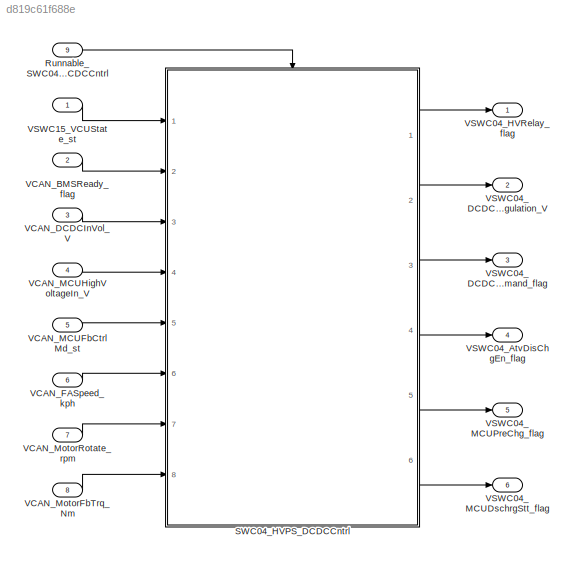
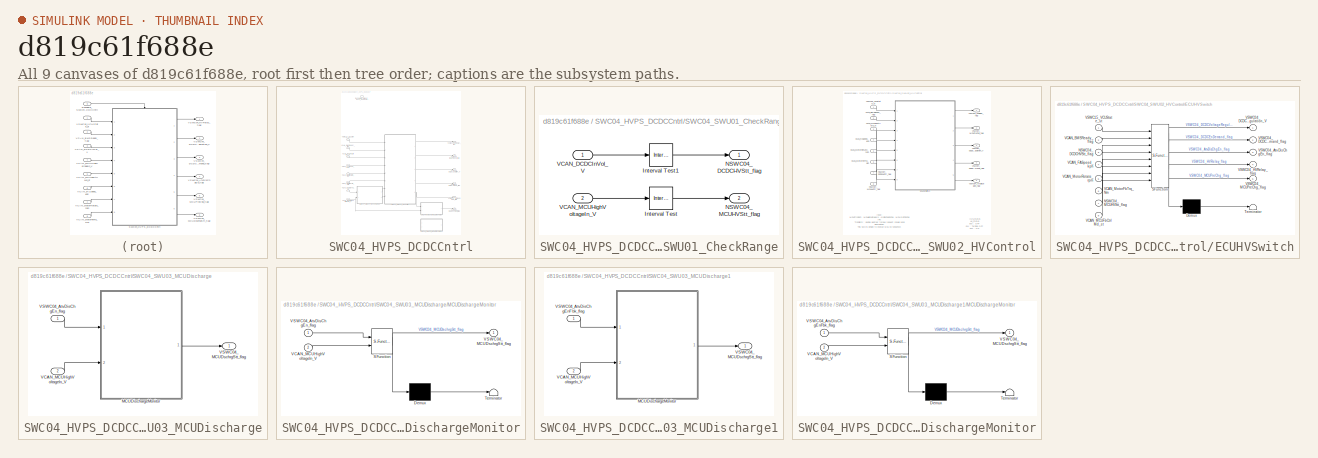
[diagram: thumbnail index - all 9 canvases of the model, root first then tree order]
MODEL slx_d819c61f688e
KIND model
CONFIG AbsTol = auto
CONFIG EnableMultiTasking = off
CONFIG FixedStep = 0.01
CONFIG MaxStep = auto
CONFIG MinStep = auto
CONFIG RelTol = 1e-3
CONFIG SampleTimeConstraint = Unconstrained
CONFIG SolverName = FixedStepDiscrete
CONFIG StartTime = 0.0
CONFIG StopTime = 10.0
WORKSPACE source: mxarray member
WORKSPACE KSWC07_PDOff_V: Simulink.Parameter (value not decoded)
WORKSPACE KSWC07_PDOn_V: Simulink.Parameter (value not decoded)
WORKSPACE NSWC04_B2VSOCEmgncyChgLow_per: Simulink.Parameter (value not decoded)
WORKSPACE NSWC04_KL30EmgncyChgLow_V: Simulink.Parameter (value not decoded)
BLOCK [Inport] Runnable_SWC04HVPSDCDCCntrl
  OutputFunctionCall = on
  Port = 9
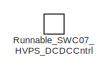
[diagram: SWC04_HVPS_DCDCCntrl - part 1/2, top left region]
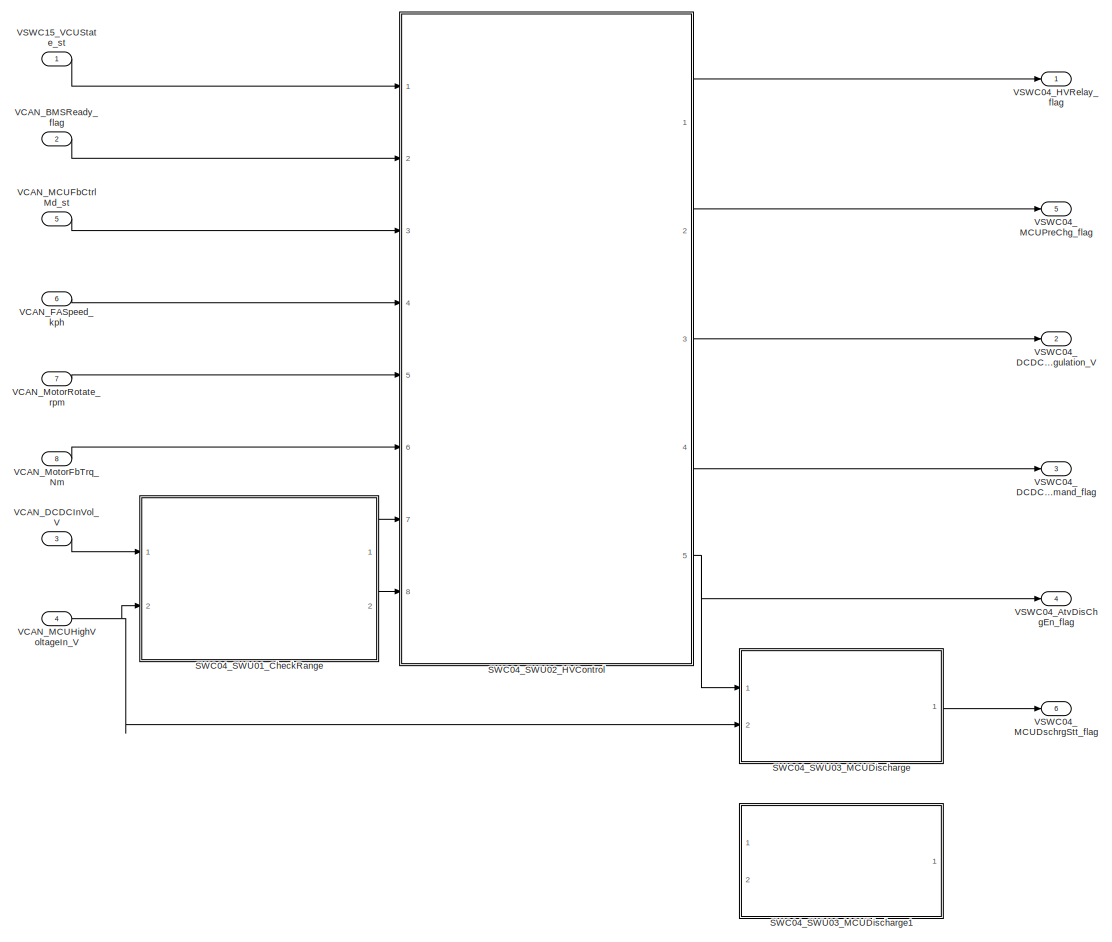
[diagram: SWC04_HVPS_DCDCCntrl - part 2/2, full width, middle band]
BLOCK [SubSystem] SWC04_HVPS_DCDCCntrl
  Ports = [8, 6, 0, 1]
  RequestExecContextInheritance = off
BLOCK [TriggerPort] SWC04_HVPS_DCDCCntrl/Runnable_SWC07_HVPS_DCDCCntrl
  Ports = []
  StatesWhenEnabling = held
  TriggerType = function-call
  VariantControl = Variant
BLOCK [SubSystem] SWC04_HVPS_DCDCCntrl/SWC04_SWU01_CheckRange
  Ports = [2, 2]
  RTWFcnName = SWC04_SWU01_CheckRange
  RTWFcnNameOpts = User specified
  RTWSystemCode = Nonreusable function
  RequestExecContextInheritance = off
  TreatAsAtomicUnit = on
BLOCK [Reference] SWC04_HVPS_DCDCCntrl/SWC04_SWU01_CheckRange/Interval Test  REF=simulink/Logic and Bit
Operations/Interval Test
  AttributesFormatString = %<uplimit>~%<lowlimit>
  Ports = [1, 1]
  SourceBlock = simulink/Logic and Bit\nOperations/Interval Test
  SourceProductBaseCode = SL
  SourceType = Interval Test
BLOCK [Reference] SWC04_HVPS_DCDCCntrl/SWC04_SWU01_CheckRange/Interval Test1  REF=simulink/Logic and Bit
Operations/Interval Test
  AttributesFormatString = %<uplimit>~%<lowlimit>
  Ports = [1, 1]
  SourceBlock = simulink/Logic and Bit\nOperations/Interval Test
  SourceProductBaseCode = SL
  SourceType = Interval Test
BLOCK [Outport] SWC04_HVPS_DCDCCntrl/SWC04_SWU01_CheckRange/NSWC04_DCDCHVStt_flag
BLOCK [Outport] SWC04_HVPS_DCDCCntrl/SWC04_SWU01_CheckRange/NSWC04_MCUHVStt_flag
  Port = 2
BLOCK [Inport] SWC04_HVPS_DCDCCntrl/SWC04_SWU01_CheckRange/VCAN_DCDCInVol_V
BLOCK [Inport] SWC04_HVPS_DCDCCntrl/SWC04_SWU01_CheckRange/VCAN_MCUHighVoltageIn_V
  Port = 2
BLOCK [SubSystem] SWC04_HVPS_DCDCCntrl/SWC04_SWU02_HVControl
  Ports = [8, 5]
  RTWFcnName = SWC04_SWU02_HVControl
  RTWFcnNameOpts = User specified
  RTWSystemCode = Nonreusable function
  RequestExecContextInheritance = off
  TreatAsAtomicUnit = on
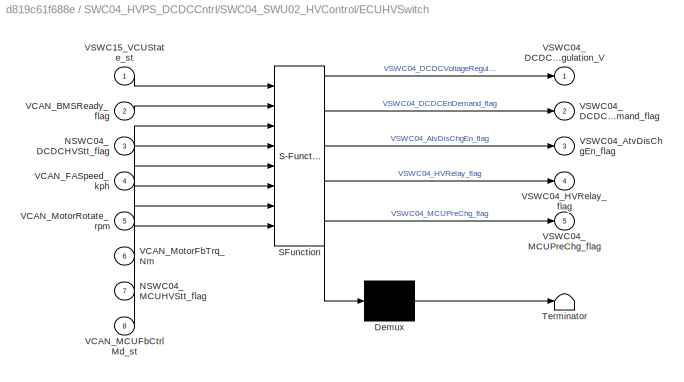
BLOCK [SubSystem] SWC04_HVPS_DCDCCntrl/SWC04_SWU02_HVControl/ECUHVSwitch
  ErrorFcn = Stateflow.Translate.translate
  PermitHierarchicalResolution = ExplicitOnly
  PortSchema = {"entries":[{"content":{"sides":[{"content":{"connectorIds":["In1","In2","In8","In4","In5","In6","In3","In7"]},"type":"ConnectorPlacement.EquallySpacedRectSide","uuid":"9266dbf1-70a9-4f04-bd33-da9c8fd394b7"},{"content":{"connectorIds":["Out4","Out5","Out1","Out2","Out3"],"side":"RIGHT"},"type":"ConnectorPlacement.EquallySpacedRectSide","uuid":"b1d84704-ffdf-48b3-a93e-c6e208d4a054"},{"content":{"co...<+310ch>
  Ports = [8, 5]
  RequestExecContextInheritance = off
  SFBlockType = Chart
  TreatAsAtomicUnit = on
BLOCK [Demux] SWC04_HVPS_DCDCCntrl/SWC04_SWU02_HVControl/ECUHVSwitch/ Demux 
  Outputs = 1
  Ports = [1, 1]
BLOCK [S-Function] SWC04_HVPS_DCDCCntrl/SWC04_SWU02_HVControl/ECUHVSwitch/ SFunction 
  EnableBusSupport = on
  FunctionName = sf_sfun
  Parameters = DCDC_14V,MCUMd_AD,MCUMd_SB,MFbTrq_Off,MRtt_Off,VSUStt_HVOff,VSUStt_HVOn,VhSpd_Off
  PortCounts = [8 6]
  Ports = [8, 6]
  SFcnIsStateOwnerBlock = off
  SFunctionDeploymentMode = off
  Tag = Stateflow S-Function 2
BLOCK [Terminator] SWC04_HVPS_DCDCCntrl/SWC04_SWU02_HVControl/ECUHVSwitch/ Terminator 
BLOCK [Inport] SWC04_HVPS_DCDCCntrl/SWC04_SWU02_HVControl/ECUHVSwitch/NSWC04_DCDCHVStt_flag
  Port = 3
BLOCK [Inport] SWC04_HVPS_DCDCCntrl/SWC04_SWU02_HVControl/ECUHVSwitch/NSWC04_MCUHVStt_flag
  Port = 7
BLOCK [Inport] SWC04_HVPS_DCDCCntrl/SWC04_SWU02_HVControl/ECUHVSwitch/VCAN_BMSReady_flag
  Port = 2
BLOCK [Inport] SWC04_HVPS_DCDCCntrl/SWC04_SWU02_HVControl/ECUHVSwitch/VCAN_FASpeed_kph
  Port = 4
BLOCK [Inport] SWC04_HVPS_DCDCCntrl/SWC04_SWU02_HVControl/ECUHVSwitch/VCAN_MCUFbCtrlMd_st
  Port = 8
BLOCK [Inport] SWC04_HVPS_DCDCCntrl/SWC04_SWU02_HVControl/ECUHVSwitch/VCAN_MotorFbTrq_Nm
  Port = 6
BLOCK [Inport] SWC04_HVPS_DCDCCntrl/SWC04_SWU02_HVControl/ECUHVSwitch/VCAN_MotorRotate_rpm
  Port = 5
BLOCK [Outport] SWC04_HVPS_DCDCCntrl/SWC04_SWU02_HVControl/ECUHVSwitch/VSWC04_AtvDisChgEn_flag
  Port = 3
BLOCK [Outport] SWC04_HVPS_DCDCCntrl/SWC04_SWU02_HVControl/ECUHVSwitch/VSWC04_DCDCEnDemand_flag
  Port = 2
BLOCK [Outport] SWC04_HVPS_DCDCCntrl/SWC04_SWU02_HVControl/ECUHVSwitch/VSWC04_DCDCVoltageRegulation_V
BLOCK [Outport] SWC04_HVPS_DCDCCntrl/SWC04_SWU02_HVControl/ECUHVSwitch/VSWC04_HVRelay_flag
  Port = 4
BLOCK [Outport] SWC04_HVPS_DCDCCntrl/SWC04_SWU02_HVControl/ECUHVSwitch/VSWC04_MCUPreChg_flag
  Port = 5
BLOCK [Inport] SWC04_HVPS_DCDCCntrl/SWC04_SWU02_HVControl/ECUHVSwitch/VSWC15_VCUState_st
BLOCK [Inport] SWC04_HVPS_DCDCCntrl/SWC04_SWU02_HVControl/NSWC07_DCDCHVStt_flag
  Port = 7
BLOCK [Inport] SWC04_HVPS_DCDCCntrl/SWC04_SWU02_HVControl/NSWC07_MCUHVStt_flag
  Port = 8
BLOCK [Inport] SWC04_HVPS_DCDCCntrl/SWC04_SWU02_HVControl/VCAN_BMSReady_flag
  Port = 2
BLOCK [Inport] SWC04_HVPS_DCDCCntrl/SWC04_SWU02_HVControl/VCAN_FASpeed_kph
  Port = 4
BLOCK [Inport] SWC04_HVPS_DCDCCntrl/SWC04_SWU02_HVControl/VCAN_MCUFbCtrlMd_st
  Port = 3
BLOCK [Inport] SWC04_HVPS_DCDCCntrl/SWC04_SWU02_HVControl/VCAN_MotorFbTrq_Nm
  Port = 6
BLOCK [Inport] SWC04_HVPS_DCDCCntrl/SWC04_SWU02_HVControl/VCAN_MotorRotate_rpm
  Port = 5
BLOCK [Outport] SWC04_HVPS_DCDCCntrl/SWC04_SWU02_HVControl/VSWC04_AtvDisChgEn_flag
  Port = 5
BLOCK [Outport] SWC04_HVPS_DCDCCntrl/SWC04_SWU02_HVControl/VSWC04_DCDCEnDemand_flag
  Port = 4
BLOCK [Outport] SWC04_HVPS_DCDCCntrl/SWC04_SWU02_HVControl/VSWC04_DCDCVoltageRegulation_V
  Port = 3
BLOCK [Outport] SWC04_HVPS_DCDCCntrl/SWC04_SWU02_HVControl/VSWC04_HVRelay_flag
BLOCK [Outport] SWC04_HVPS_DCDCCntrl/SWC04_SWU02_HVControl/VSWC04_MCUPreChg_flag
  Port = 2
BLOCK [Inport] SWC04_HVPS_DCDCCntrl/SWC04_SWU02_HVControl/VSWC15_VCUState_st
BLOCK [SubSystem] SWC04_HVPS_DCDCCntrl/SWC04_SWU03_MCUDischarge
  Ports = [2, 1]
  RTWFcnName = SWC04_SWU03_MCUDischarge
  RTWFcnNameOpts = User specified
  RTWSystemCode = Nonreusable function
  RequestExecContextInheritance = off
  TreatAsAtomicUnit = on
  VariantControl = Choice_1
BLOCK [SubSystem] SWC04_HVPS_DCDCCntrl/SWC04_SWU03_MCUDischarge/MCUDischargeMonitor
  ErrorFcn = Stateflow.Translate.translate
  PermitHierarchicalResolution = ExplicitOnly
  Ports = [2, 1]
  RequestExecContextInheritance = off
  SFBlockType = Chart
  TreatAsAtomicUnit = on
  VariantControl = Choice
BLOCK [Demux] SWC04_HVPS_DCDCCntrl/SWC04_SWU03_MCUDischarge/MCUDischargeMonitor/ Demux 
  Outputs = 1
  Ports = [1, 1]
BLOCK [S-Function] SWC04_HVPS_DCDCCntrl/SWC04_SWU03_MCUDischarge/MCUDischargeMonitor/ SFunction 
  EnableBusSupport = on
  FunctionName = sf_sfun
  Parameters = HV50V
  PortCounts = [2 2]
  Ports = [2, 2]
  SFcnIsStateOwnerBlock = off
  SFunctionDeploymentMode = off
  Tag = Stateflow S-Function 1
BLOCK [Terminator] SWC04_HVPS_DCDCCntrl/SWC04_SWU03_MCUDischarge/MCUDischargeMonitor/ Terminator 
BLOCK [Inport] SWC04_HVPS_DCDCCntrl/SWC04_SWU03_MCUDischarge/MCUDischargeMonitor/VCAN_MCUHighVoltageIn_V
  Port = 2
BLOCK [Inport] SWC04_HVPS_DCDCCntrl/SWC04_SWU03_MCUDischarge/MCUDischargeMonitor/VSWC04_AtvDisChgEn_flag
BLOCK [Outport] SWC04_HVPS_DCDCCntrl/SWC04_SWU03_MCUDischarge/MCUDischargeMonitor/VSWC04_MCUDschrgStt_flag
BLOCK [Inport] SWC04_HVPS_DCDCCntrl/SWC04_SWU03_MCUDischarge/VCAN_MCUHighVoltageIn_V
  Port = 2
BLOCK [Inport] SWC04_HVPS_DCDCCntrl/SWC04_SWU03_MCUDischarge/VSWC04_AtvDisChgEn_flag
BLOCK [Outport] SWC04_HVPS_DCDCCntrl/SWC04_SWU03_MCUDischarge/VSWC04_MCUDschrgStt_flag
BLOCK [SubSystem] SWC04_HVPS_DCDCCntrl/SWC04_SWU03_MCUDischarge1
  Commented = on
  Ports = [2, 1]
  RequestExecContextInheritance = off
  VariantControl = Choice_2
BLOCK [SubSystem] SWC04_HVPS_DCDCCntrl/SWC04_SWU03_MCUDischarge1/MCUDischargeMonitor
  ErrorFcn = Stateflow.Translate.translate
  PermitHierarchicalResolution = ExplicitOnly
  Ports = [2, 1]
  RequestExecContextInheritance = off
  SFBlockType = Chart
  TreatAsAtomicUnit = on
  VariantControl = Choice
BLOCK [Demux] SWC04_HVPS_DCDCCntrl/SWC04_SWU03_MCUDischarge1/MCUDischargeMonitor/ Demux 
  Outputs = 1
  Ports = [1, 1]
BLOCK [S-Function] SWC04_HVPS_DCDCCntrl/SWC04_SWU03_MCUDischarge1/MCUDischargeMonitor/ SFunction 
  EnableBusSupport = on
  FunctionName = sf_sfun
  Parameters = HV50V
  PortCounts = [2 2]
  Ports = [2, 2]
  SFcnIsStateOwnerBlock = off
  SFunctionDeploymentMode = off
  Tag = Stateflow S-Function 5
BLOCK [Terminator] SWC04_HVPS_DCDCCntrl/SWC04_SWU03_MCUDischarge1/MCUDischargeMonitor/ Terminator 
BLOCK [Inport] SWC04_HVPS_DCDCCntrl/SWC04_SWU03_MCUDischarge1/MCUDischargeMonitor/VCAN_MCUHighVoltageIn_V
  Port = 2
BLOCK [Inport] SWC04_HVPS_DCDCCntrl/SWC04_SWU03_MCUDischarge1/MCUDischargeMonitor/VSWC04_AtvDisChgEnFbk_flag
BLOCK [Outport] SWC04_HVPS_DCDCCntrl/SWC04_SWU03_MCUDischarge1/MCUDischargeMonitor/VSWC04_MCUDschrgStt_flag
BLOCK [Inport] SWC04_HVPS_DCDCCntrl/SWC04_SWU03_MCUDischarge1/VCAN_MCUHighVoltageIn_V
  Port = 2
BLOCK [Inport] SWC04_HVPS_DCDCCntrl/SWC04_SWU03_MCUDischarge1/VSWC04_AtvDisChgEnFbk_flag
BLOCK [Outport] SWC04_HVPS_DCDCCntrl/SWC04_SWU03_MCUDischarge1/VSWC04_MCUDschrgStt_flag
BLOCK [Inport] SWC04_HVPS_DCDCCntrl/VCAN_BMSReady_flag
  Port = 2
BLOCK [Inport] SWC04_HVPS_DCDCCntrl/VCAN_DCDCInVol_V
  Port = 3
BLOCK [Inport] SWC04_HVPS_DCDCCntrl/VCAN_FASpeed_kph
  Port = 6
BLOCK [Inport] SWC04_HVPS_DCDCCntrl/VCAN_MCUFbCtrlMd_st
  Port = 5
BLOCK [Inport] SWC04_HVPS_DCDCCntrl/VCAN_MCUHighVoltageIn_V
  Port = 4
BLOCK [Inport] SWC04_HVPS_DCDCCntrl/VCAN_MotorFbTrq_Nm
  Port = 8
BLOCK [Inport] SWC04_HVPS_DCDCCntrl/VCAN_MotorRotate_rpm
  Port = 7
BLOCK [Outport] SWC04_HVPS_DCDCCntrl/VSWC04_AtvDisChgEn_flag
  Port = 4
BLOCK [Outport] SWC04_HVPS_DCDCCntrl/VSWC04_DCDCEnDemand_flag
  Port = 3
BLOCK [Outport] SWC04_HVPS_DCDCCntrl/VSWC04_DCDCVoltageRegulation_V
  Port = 2
BLOCK [Outport] SWC04_HVPS_DCDCCntrl/VSWC04_HVRelay_flag
BLOCK [Outport] SWC04_HVPS_DCDCCntrl/VSWC04_MCUDschrgStt_flag
  Port = 6
BLOCK [Outport] SWC04_HVPS_DCDCCntrl/VSWC04_MCUPreChg_flag
  Port = 5
BLOCK [Inport] SWC04_HVPS_DCDCCntrl/VSWC15_VCUState_st
BLOCK [Inport] VCAN_BMSReady_flag
  OutDataTypeStr = boolean
  OutMax = 1
  OutMin = 0
  Port = 2
  PortDimensions = 1
BLOCK [Inport] VCAN_DCDCInVol_V
  OutDataTypeStr = uint16
  OutMax = 500
  OutMin = 0
  Port = 3
  PortDimensions = 1
  Unit = V
BLOCK [Inport] VCAN_FASpeed_kph
  OutDataTypeStr = uint8
  OutMax = 150
  OutMin = 0
  Port = 6
  PortDimensions = 1
  Unit = km/hr
BLOCK [Inport] VCAN_MCUFbCtrlMd_st
  OutDataTypeStr = uint8
  OutMax = 4
  OutMin = 0
  Port = 5
  PortDimensions = 1
BLOCK [Inport] VCAN_MCUHighVoltageIn_V
  OutDataTypeStr = uint16
  OutMax = 500
  OutMin = 0
  Port = 4
  PortDimensions = 1
  Unit = V
BLOCK [Inport] VCAN_MotorFbTrq_Nm
  OutDataTypeStr = uint8
  OutMax = 225
  OutMin = 0
  Port = 8
  PortDimensions = 1
  Unit = N*m
BLOCK [Inport] VCAN_MotorRotate_rpm
  OutDataTypeStr = uint16
  OutMax = 16000
  OutMin = 0
  Port = 7
  PortDimensions = 1
  Unit = rpm
BLOCK [Outport] VSWC04_AtvDisChgEn_flag
  OutDataTypeStr = boolean
  OutMax = 1
  OutMin = 0
  Port = 4
  PortDimensions = 1
BLOCK [Outport] VSWC04_DCDCEnDemand_flag
  OutDataTypeStr = boolean
  OutMax = 1
  OutMin = 0
  Port = 3
  PortDimensions = 1
BLOCK [Outport] VSWC04_DCDCVoltageRegulation_V
  OutDataTypeStr = uint8
  OutMax = 36
  OutMin = 0
  Port = 2
  PortDimensions = 1
  Unit = V
BLOCK [Outport] VSWC04_HVRelay_flag
  OutDataTypeStr = boolean
  OutMax = 1
  OutMin = 0
  PortDimensions = 1
BLOCK [Outport] VSWC04_MCUDschrgStt_flag
  OutDataTypeStr = boolean
  OutMax = 1
  OutMin = 0
  Port = 6
  PortDimensions = 1
BLOCK [Outport] VSWC04_MCUPreChg_flag
  OutDataTypeStr = boolean
  OutMax = 1
  OutMin = 0
  Port = 5
  PortDimensions = 1
BLOCK [Inport] VSWC15_VCUState_st
  OutDataTypeStr = uint8
  OutMax = 13
  OutMin = 0
  PortDimensions = 1
ANNOTATION SWC04_HVPS_DCDCCntrl/SWC04_SWU02_HVControl: Input: MCUSttsRqst, MCUHighVoltageIn , AtvDisChgEnFbk, MCUIGBTEnFbk IRV: TrqSwitch : decide whether torque request should send Description: This SWC is design to execue MCU HV sequence. Output: MCU_status, VCUMCUEn, VCUMCUCtrlMd, VCUMCUDemTrq
ANNOTATION SWC04_HVPS_DCDCCntrl/SWC04_SWU02_HVControl: IGN_status HV_status 0x0 : OFF 0x1 : Turning OFF 0x2 : ON
LINE Runnable_SWC04HVPSDCDCCntrl:1 -> SWC04_HVPS_DCDCCntrl:trigger
LINE SWC04_HVPS_DCDCCntrl/SWC04_SWU01_CheckRange/Interval Test1:1 -> SWC04_HVPS_DCDCCntrl/SWC04_SWU01_CheckRange/NSWC04_DCDCHVStt_flag:1
LINE SWC04_HVPS_DCDCCntrl/SWC04_SWU01_CheckRange/Interval Test:1 -> SWC04_HVPS_DCDCCntrl/SWC04_SWU01_CheckRange/NSWC04_MCUHVStt_flag:1
LINE SWC04_HVPS_DCDCCntrl/SWC04_SWU01_CheckRange/VCAN_DCDCInVol_V:1 -> SWC04_HVPS_DCDCCntrl/SWC04_SWU01_CheckRange/Interval Test1:1
LINE SWC04_HVPS_DCDCCntrl/SWC04_SWU01_CheckRange/VCAN_MCUHighVoltageIn_V:1 -> SWC04_HVPS_DCDCCntrl/SWC04_SWU01_CheckRange/Interval Test:1
LINE SWC04_HVPS_DCDCCntrl/SWC04_SWU01_CheckRange:1 -> SWC04_HVPS_DCDCCntrl/SWC04_SWU02_HVControl:7
LINE SWC04_HVPS_DCDCCntrl/SWC04_SWU01_CheckRange:2 -> SWC04_HVPS_DCDCCntrl/SWC04_SWU02_HVControl:8
LINE SWC04_HVPS_DCDCCntrl/SWC04_SWU02_HVControl/ECUHVSwitch:1 -> SWC04_HVPS_DCDCCntrl/SWC04_SWU02_HVControl/VSWC04_DCDCVoltageRegulation_V:1
LINE SWC04_HVPS_DCDCCntrl/SWC04_SWU02_HVControl/ECUHVSwitch:2 -> SWC04_HVPS_DCDCCntrl/SWC04_SWU02_HVControl/VSWC04_DCDCEnDemand_flag:1
LINE SWC04_HVPS_DCDCCntrl/SWC04_SWU02_HVControl/ECUHVSwitch:3 -> SWC04_HVPS_DCDCCntrl/SWC04_SWU02_HVControl/VSWC04_AtvDisChgEn_flag:1
LINE SWC04_HVPS_DCDCCntrl/SWC04_SWU02_HVControl/ECUHVSwitch:4 -> SWC04_HVPS_DCDCCntrl/SWC04_SWU02_HVControl/VSWC04_HVRelay_flag:1
LINE SWC04_HVPS_DCDCCntrl/SWC04_SWU02_HVControl/ECUHVSwitch:5 -> SWC04_HVPS_DCDCCntrl/SWC04_SWU02_HVControl/VSWC04_MCUPreChg_flag:1
LINE SWC04_HVPS_DCDCCntrl/SWC04_SWU02_HVControl/NSWC07_DCDCHVStt_flag:1 -> SWC04_HVPS_DCDCCntrl/SWC04_SWU02_HVControl/ECUHVSwitch:3
LINE SWC04_HVPS_DCDCCntrl/SWC04_SWU02_HVControl/NSWC07_MCUHVStt_flag:1 -> SWC04_HVPS_DCDCCntrl/SWC04_SWU02_HVControl/ECUHVSwitch:7
LINE SWC04_HVPS_DCDCCntrl/SWC04_SWU02_HVControl/VCAN_BMSReady_flag:1 -> SWC04_HVPS_DCDCCntrl/SWC04_SWU02_HVControl/ECUHVSwitch:2
LINE SWC04_HVPS_DCDCCntrl/SWC04_SWU02_HVControl/VCAN_FASpeed_kph:1 -> SWC04_HVPS_DCDCCntrl/SWC04_SWU02_HVControl/ECUHVSwitch:4
LINE SWC04_HVPS_DCDCCntrl/SWC04_SWU02_HVControl/VCAN_MCUFbCtrlMd_st:1 -> SWC04_HVPS_DCDCCntrl/SWC04_SWU02_HVControl/ECUHVSwitch:8
LINE SWC04_HVPS_DCDCCntrl/SWC04_SWU02_HVControl/VCAN_MotorFbTrq_Nm:1 -> SWC04_HVPS_DCDCCntrl/SWC04_SWU02_HVControl/ECUHVSwitch:6
LINE SWC04_HVPS_DCDCCntrl/SWC04_SWU02_HVControl/VCAN_MotorRotate_rpm:1 -> SWC04_HVPS_DCDCCntrl/SWC04_SWU02_HVControl/ECUHVSwitch:5
LINE SWC04_HVPS_DCDCCntrl/SWC04_SWU02_HVControl/VSWC15_VCUState_st:1 -> SWC04_HVPS_DCDCCntrl/SWC04_SWU02_HVControl/ECUHVSwitch:1
LINE SWC04_HVPS_DCDCCntrl/SWC04_SWU02_HVControl:1 -> SWC04_HVPS_DCDCCntrl/VSWC04_HVRelay_flag:1
LINE SWC04_HVPS_DCDCCntrl/SWC04_SWU02_HVControl:2 -> SWC04_HVPS_DCDCCntrl/VSWC04_MCUPreChg_flag:1
LINE SWC04_HVPS_DCDCCntrl/SWC04_SWU02_HVControl:3 -> SWC04_HVPS_DCDCCntrl/VSWC04_DCDCVoltageRegulation_V:1
LINE SWC04_HVPS_DCDCCntrl/SWC04_SWU02_HVControl:4 -> SWC04_HVPS_DCDCCntrl/VSWC04_DCDCEnDemand_flag:1
NET SWC04_HVPS_DCDCCntrl/SWC04_SWU02_HVControl:5 -> SWC04_HVPS_DCDCCntrl/SWC04_SWU03_MCUDischarge:1, SWC04_HVPS_DCDCCntrl/VSWC04_AtvDisChgEn_flag:1
LINE SWC04_HVPS_DCDCCntrl/SWC04_SWU03_MCUDischarge/MCUDischargeMonitor:1 -> SWC04_HVPS_DCDCCntrl/SWC04_SWU03_MCUDischarge/VSWC04_MCUDschrgStt_flag:1
LINE SWC04_HVPS_DCDCCntrl/SWC04_SWU03_MCUDischarge/VCAN_MCUHighVoltageIn_V:1 -> SWC04_HVPS_DCDCCntrl/SWC04_SWU03_MCUDischarge/MCUDischargeMonitor:2
LINE SWC04_HVPS_DCDCCntrl/SWC04_SWU03_MCUDischarge/VSWC04_AtvDisChgEn_flag:1 -> SWC04_HVPS_DCDCCntrl/SWC04_SWU03_MCUDischarge/MCUDischargeMonitor:1
LINE SWC04_HVPS_DCDCCntrl/SWC04_SWU03_MCUDischarge1/MCUDischargeMonitor:1 -> SWC04_HVPS_DCDCCntrl/SWC04_SWU03_MCUDischarge1/VSWC04_MCUDschrgStt_flag:1
LINE SWC04_HVPS_DCDCCntrl/SWC04_SWU03_MCUDischarge1/VCAN_MCUHighVoltageIn_V:1 -> SWC04_HVPS_DCDCCntrl/SWC04_SWU03_MCUDischarge1/MCUDischargeMonitor:2
LINE SWC04_HVPS_DCDCCntrl/SWC04_SWU03_MCUDischarge1/VSWC04_AtvDisChgEnFbk_flag:1 -> SWC04_HVPS_DCDCCntrl/SWC04_SWU03_MCUDischarge1/MCUDischargeMonitor:1
LINE SWC04_HVPS_DCDCCntrl/SWC04_SWU03_MCUDischarge:1 -> SWC04_HVPS_DCDCCntrl/VSWC04_MCUDschrgStt_flag:1
LINE SWC04_HVPS_DCDCCntrl/VCAN_BMSReady_flag:1 -> SWC04_HVPS_DCDCCntrl/SWC04_SWU02_HVControl:2
LINE SWC04_HVPS_DCDCCntrl/VCAN_DCDCInVol_V:1 -> SWC04_HVPS_DCDCCntrl/SWC04_SWU01_CheckRange:1
LINE SWC04_HVPS_DCDCCntrl/VCAN_FASpeed_kph:1 -> SWC04_HVPS_DCDCCntrl/SWC04_SWU02_HVControl:4
LINE SWC04_HVPS_DCDCCntrl/VCAN_MCUFbCtrlMd_st:1 -> SWC04_HVPS_DCDCCntrl/SWC04_SWU02_HVControl:3
NET SWC04_HVPS_DCDCCntrl/VCAN_MCUHighVoltageIn_V:1 -> SWC04_HVPS_DCDCCntrl/SWC04_SWU01_CheckRange:2, SWC04_HVPS_DCDCCntrl/SWC04_SWU03_MCUDischarge:2
LINE SWC04_HVPS_DCDCCntrl/VCAN_MotorFbTrq_Nm:1 -> SWC04_HVPS_DCDCCntrl/SWC04_SWU02_HVControl:6
LINE SWC04_HVPS_DCDCCntrl/VCAN_MotorRotate_rpm:1 -> SWC04_HVPS_DCDCCntrl/SWC04_SWU02_HVControl:5
LINE SWC04_HVPS_DCDCCntrl/VSWC15_VCUState_st:1 -> SWC04_HVPS_DCDCCntrl/SWC04_SWU02_HVControl:1
LINE SWC04_HVPS_DCDCCntrl:1 -> VSWC04_HVRelay_flag:1
LINE SWC04_HVPS_DCDCCntrl:2 -> VSWC04_DCDCVoltageRegulation_V:1
LINE SWC04_HVPS_DCDCCntrl:3 -> VSWC04_DCDCEnDemand_flag:1
LINE SWC04_HVPS_DCDCCntrl:4 -> VSWC04_AtvDisChgEn_flag:1
LINE SWC04_HVPS_DCDCCntrl:5 -> VSWC04_MCUPreChg_flag:1
LINE SWC04_HVPS_DCDCCntrl:6 -> VSWC04_MCUDschrgStt_flag:1
LINE VCAN_BMSReady_flag:1 -> SWC04_HVPS_DCDCCntrl:2
LINE VCAN_DCDCInVol_V:1 -> SWC04_HVPS_DCDCCntrl:3
LINE VCAN_FASpeed_kph:1 -> SWC04_HVPS_DCDCCntrl:6
LINE VCAN_MCUFbCtrlMd_st:1 -> SWC04_HVPS_DCDCCntrl:5
LINE VCAN_MCUHighVoltageIn_V:1 -> SWC04_HVPS_DCDCCntrl:4
LINE VCAN_MotorFbTrq_Nm:1 -> SWC04_HVPS_DCDCCntrl:8
LINE VCAN_MotorRotate_rpm:1 -> SWC04_HVPS_DCDCCntrl:7
LINE VSWC15_VCUState_st:1 -> SWC04_HVPS_DCDCCntrl:1
note: NET lines group one-source signal fan-out (src -> all destinations, sorted); 1:1 wires keep LINE
CHART Test Assessment Block states=3 transitions=10
  STATE_LABEL 'Run\n\n'
  STATE_LABEL 'step_1_1'
  STATE_LABEL 'step_1_2'
  STATE_LABEL '[t < 5]'
  STATE_LABEL '[~in(step_1_1)]'
  STATE_LABEL '[~in(step_1_2)]'
  STATE_LABEL 'step_1_1'
  STATE_LABEL 'step_1_2'
CHART Test Sequence1 states=16 transitions=16
  STATE_LABEL 'step_1\n VCUStt = uint8(0); % Init\n BMSReady = false;'
  STATE_LABEL 'step_2\n VCUStt = uint8(1); % Waking'
  STATE_LABEL 'step_2_1'
  STATE_LABEL 'step_2_2'
  STATE_LABEL 'step_2_3\n BMSReady = true;'
  STATE_LABEL '[\nVCUStt == uint8(1)\n]'
  STATE_LABEL '[\nafter(10,tick)\n]'
  STATE_LABEL 'step_2_1'
  STATE_LABEL 'step_2_2'
  STATE_LABEL 'step_2_3\n BMSReady = true;'
  STATE_LABEL 'step_3\n  VCUStt = uint8(3); % HV ON\n  % HV ON start'
  STATE_LABEL 'step_3_1\n Flag = false;'
  STATE_LABEL 'step_3_2'
  STATE_LABEL 'step_3_3\n  DCDCHV = uint16(330);\n  MCUHV = uint16(330);'
  STATE_LABEL 'step_3_4'
  STATE_LABEL 'step_3_5\n %after(10,tick);\n MCUFbCtrlMd = uint8(4); % MCU Standby\n Flag = true;'
  STATE_LABEL '[\nRelay\n]'
  STATE_LABEL '[\nafter(10,tick)\n]'
  STATE_LABEL '[\nMCUPreChg\n]'
  STATE_LABEL 'step_3_1\n Flag = false;'
  STATE_LABEL 'step_3_2'
  STATE_LABEL 'step_3_3\n  DCDCHV = uint16(330);\n  MCUHV = uint16(330);'
  STATE_LABEL 'step_3_4'
  STATE_LABEL 'step_3_5\n %after(10,tick);\n MCUFbCtrlMd = uint8(4); % MCU Standby\n Flag = true;'
  STATE_LABEL 'step_4\n  VCUStt = uint8(6); % Driving Standby\n  % HV ON finish'
  STATE_LABEL 'step_5\n VCUStt = uint8(10); % HV OFF'
  STATE_LABEL 'step_5_1\n MCUFbCtrlMd = uint8(4); % MCU Standby'
  STATE_LABEL 'step_5_2\n MCUFbCtrlMd = uint8(3); % MCU Active Discharge'
  STATE_LABEL '[\nafter(20,tick) && MCUFbCtrlMd == uint8(4)\n]'
  STATE_LABEL 'step_5_1\n MCUFbCtrlMd = uint8(4); % MCU Standby'
  STATE_LABEL 'step_5_2\n MCUFbCtrlMd = uint8(3); % MCU Active Discharge'
  STATE_LABEL 'step_6\n VCUStt = uint8(13); % Wait OFF'
CHART Simulink Function scheduler states=3 transitions=3
  STATE_LABEL 'Run\n\n%% Call Initialization task.\nif t == 0\n    send(Initialize);\nend\n'
  STATE_LABEL 'AsyncFunctionCalls\n\n%% Call Asynchronous FunctionCall Subsystems.\n\n%%\nsend(Runnable_SWC04HVPSDCDCCntrl);'
  STATE_LABEL 'Terminate\n\n% Call Terminate task.\n% Add transitions to this step as required.\nsend(Terminate);'
CHART Test Assessment Block states=3 transitions=10
  STATE_LABEL 'Run\n\n'
  STATE_LABEL 'step_1_1'
  STATE_LABEL 'step_1_2'
  STATE_LABEL '[t < 5]'
  STATE_LABEL '[~in(step_1_1)]'
  STATE_LABEL '[~in(step_1_2)]'
  STATE_LABEL 'step_1_1'
  STATE_LABEL 'step_1_2'
CHART Simulink Function scheduler states=3 transitions=3
  STATE_LABEL 'Run\n\n%% Call Initialization task.\nif t == 0\n    send(Initialize);\nend\n'
  STATE_LABEL 'AsyncFunctionCalls\n\n%% Call Asynchronous FunctionCall Subsystems.\n\n%%\nsend(Runnable_SWC04HVPSDCDCCntrl);'
  STATE_LABEL 'Terminate\n\n% Call Terminate task.\n% Add transitions to this step as required.\nsend(Terminate);'
CHART Test Assessment Block states=3 transitions=10
  STATE_LABEL 'Run\n\n'
  STATE_LABEL 'step_1_1'
  STATE_LABEL 'step_1_2'
  STATE_LABEL '[t < 5]'
  STATE_LABEL '[~in(step_1_1)]'
  STATE_LABEL '[~in(step_1_2)]'
  STATE_LABEL 'step_1_1'
  STATE_LABEL 'step_1_2'
CHART Simulink Function scheduler states=3 transitions=3
  STATE_LABEL 'Run\n\n%% Call Initialization task.\nif t == 0\n    send(Initialize);\nend\n'
  STATE_LABEL 'AsyncFunctionCalls\n\n%% Call Asynchronous FunctionCall Subsystems.\n\n%%\nsend(Runnable_SWC04HVPSDCDCCntrl);'
  STATE_LABEL 'Terminate\n\n% Call Terminate task.\n% Add transitions to this step as required.\nsend(Terminate);'
CHART Test Assessment Block states=3 transitions=10
  STATE_LABEL 'Run\n\n'
  STATE_LABEL 'step_1_1'
  STATE_LABEL 'step_1_2'
  STATE_LABEL '[t < 5]'
  STATE_LABEL '[~in(step_1_1)]'
  STATE_LABEL '[~in(step_1_2)]'
  STATE_LABEL 'step_1_1'
  STATE_LABEL 'step_1_2'
CHART Test Assessment Block states=3 transitions=10
  STATE_LABEL 'Run\n\n'
  STATE_LABEL 'step_1_1'
  STATE_LABEL 'step_1_2'
  STATE_LABEL '[t < 5]'
  STATE_LABEL '[~in(step_1_1)]'
  STATE_LABEL '[~in(step_1_2)]'
  STATE_LABEL 'step_1_1'
  STATE_LABEL 'step_1_2'
CHART Test Assessment Block states=3 transitions=10
  STATE_LABEL 'Run\n\n'
  STATE_LABEL 'step_1_1'
  STATE_LABEL 'step_1_2'
  STATE_LABEL '[t < 5]'
  STATE_LABEL '[~in(step_1_1)]'
  STATE_LABEL '[~in(step_1_2)]'
  STATE_LABEL 'step_1_1'
  STATE_LABEL 'step_1_2'
CHART Test Sequence1 states=19 transitions=19
  STATE_LABEL 'step_1\n VCUStt = uint8(0); % Init\n BMSReady = false;'
  STATE_LABEL 'step_2\n VCUStt = uint8(1); % Waking'
  STATE_LABEL 'step_2_1'
  STATE_LABEL 'step_2_2'
  STATE_LABEL 'step_2_3\n BMSReady = true;'
  STATE_LABEL '[\nVCUStt == uint8(1)\n]'
  STATE_LABEL '[\nafter(10,tick)\n]'
  STATE_LABEL 'step_2_1'
  STATE_LABEL 'step_2_2'
  STATE_LABEL 'step_2_3\n BMSReady = true;'
  STATE_LABEL 'step_3\n  VCUStt = uint8(3); % HV ON\n  % HV ON start'
  STATE_LABEL 'step_3_1\n Flag = false;'
  STATE_LABEL 'step_3_2'
  STATE_LABEL 'step_3_3\n  DCDCHVStt = true;\n  MCUHVStt = true;'
  STATE_LABEL 'step_3_4'
  STATE_LABEL 'step_3_5\n %after(10,tick);\n MCUFbCtrlMd = uint8(4); % MCU Standby\n Flag = true;'
  STATE_LABEL '[\nRelay\n]'
  STATE_LABEL '[\nafter(10,tick)\n]'
  STATE_LABEL '[\nMCUHVStt\n]'
  STATE_LABEL 'step_3_1\n Flag = false;'
  STATE_LABEL 'step_3_2'
  STATE_LABEL 'step_3_3\n  DCDCHVStt = true;\n  MCUHVStt = true;'
  STATE_LABEL 'step_3_4'
  STATE_LABEL 'step_3_5\n %after(10,tick);\n MCUFbCtrlMd = uint8(4); % MCU Standby\n Flag = true;'
  STATE_LABEL 'step_4\n  VCUStt = uint8(6); % Driving Standby\n  % HV ON finish'
  STATE_LABEL 'step_5\n VCUStt = uint8(10); % HV OFF'
  STATE_LABEL 'step_5_1\n MCUFbCtrlMd = uint8(4); % MCU Standby'
  STATE_LABEL 'step_5_2\n MCUFbCtrlMd = uint8(3); % MCU Active Discharge'
  STATE_LABEL 'step_5_3'
  STATE_LABEL 'step_5_4'
  STATE_LABEL 'step_5_5\n MCUDischgStt = true;'
  STATE_LABEL '[\nafter(20,tick) && MCUFbCtrlMd == uint8(4)\n]'
  STATE_LABEL '[\nMCUDischg\n]'
  STATE_LABEL '[\nafter(10,tick)\n]'
  STATE_LABEL 'step_5_1\n MCUFbCtrlMd = uint8(4); % MCU Standby'
  STATE_LABEL 'step_5_2\n MCUFbCtrlMd = uint8(3); % MCU Active Discharge'
  STATE_LABEL 'step_5_3'
  STATE_LABEL 'step_5_4'
  STATE_LABEL 'step_5_5\n MCUDischgStt = true;'
  STATE_LABEL 'step_6\n VCUStt = uint8(13); % Wait OFF'
CHART Test Assessment Block states=3 transitions=10
  STATE_LABEL 'Run\n\n'
  STATE_LABEL 'step_1_1'
  STATE_LABEL 'step_1_2'
  STATE_LABEL '[t < 5]'
  STATE_LABEL '[~in(step_1_1)]'
  STATE_LABEL '[~in(step_1_2)]'
  STATE_LABEL 'step_1_1'
  STATE_LABEL 'step_1_2'
CHART Test Sequence1 states=19 transitions=19
  STATE_LABEL 'step_1\n VCUStt = uint8(0); % Init\n BMSReady = false;'
  STATE_LABEL 'step_2\n VCUStt = uint8(1); % Waking'
  STATE_LABEL 'step_2_1'
  STATE_LABEL 'step_2_2'
  STATE_LABEL 'step_2_3\n BMSReady = true;'
  STATE_LABEL '[\nVCUStt == uint8(1)\n]'
  STATE_LABEL '[\nafter(10,tick)\n]'
  STATE_LABEL 'step_2_1'
  STATE_LABEL 'step_2_2'
  STATE_LABEL 'step_2_3\n BMSReady = true;'
  STATE_LABEL 'step_3\n  VCUStt = uint8(3); % HV ON\n  % HV ON start'
  STATE_LABEL 'step_3_1\n Flag = false;'
  STATE_LABEL 'step_3_2'
  STATE_LABEL 'step_3_3\n  DCDCHVStt = true;\n  MCUHVStt = true;'
  STATE_LABEL 'step_3_4'
  STATE_LABEL 'step_3_5\n %after(10,tick);\n MCUFbCtrlMd = uint8(4); % MCU Standby\n Flag = true;'
  STATE_LABEL '[\nRelay\n]'
  STATE_LABEL '[\nafter(10,tick)\n]'
  STATE_LABEL '[\nMCUHVStt\n]'
  STATE_LABEL 'step_3_1\n Flag = false;'
  STATE_LABEL 'step_3_2'
  STATE_LABEL 'step_3_3\n  DCDCHVStt = true;\n  MCUHVStt = true;'
  STATE_LABEL 'step_3_4'
  STATE_LABEL 'step_3_5\n %after(10,tick);\n MCUFbCtrlMd = uint8(4); % MCU Standby\n Flag = true;'
  STATE_LABEL 'step_4\n  VCUStt = uint8(6); % Driving Standby\n  % HV ON finish'
  STATE_LABEL 'step_5\n VCUStt = uint8(10); % HV OFF'
  STATE_LABEL 'step_5_1\n MCUFbCtrlMd = uint8(4); % MCU Standby'
  STATE_LABEL 'step_5_2\n MCUFbCtrlMd = uint8(3); % MCU Active Discharge'
  STATE_LABEL 'step_5_3'
  STATE_LABEL 'step_5_4'
  STATE_LABEL 'step_5_5\n MCUDischgStt = true;'
  STATE_LABEL '[\nafter(20,tick) && MCUFbCtrlMd == uint8(4)\n]'
  STATE_LABEL '[\nMCUDischg\n]'
  STATE_LABEL '[\nafter(10,tick)\n]'
  STATE_LABEL 'step_5_1\n MCUFbCtrlMd = uint8(4); % MCU Standby'
  STATE_LABEL 'step_5_2\n MCUFbCtrlMd = uint8(3); % MCU Active Discharge'
  STATE_LABEL 'step_5_3'
  STATE_LABEL 'step_5_4'
  STATE_LABEL 'step_5_5\n MCUDischgStt = true;'
  STATE_LABEL 'step_6\n VCUStt = uint8(13); % Wait OFF'
CHART Test Sequence states=3 transitions=3
  STATE_LABEL 'step_1'
  STATE_LABEL 'step_2'
  STATE_LABEL 'step_3\n'
CHART Test Assessment Block states=3 transitions=10
  STATE_LABEL 'Run\n\n'
  STATE_LABEL 'step_1_1'
  STATE_LABEL 'step_1_2'
  STATE_LABEL '[t < 5]'
  STATE_LABEL '[~in(step_1_1)]'
  STATE_LABEL '[~in(step_1_2)]'
  STATE_LABEL 'step_1_1'
  STATE_LABEL 'step_1_2'
CHART Test Assessment Block states=3 transitions=10
  STATE_LABEL 'Run\n\n'
  STATE_LABEL 'step_1_1'
  STATE_LABEL 'step_1_2'
  STATE_LABEL '[t < 5]'
  STATE_LABEL '[~in(step_1_1)]'
  STATE_LABEL '[~in(step_1_2)]'
  STATE_LABEL 'step_1_1'
  STATE_LABEL 'step_1_2'
CHART SWC04_HVPS_DCDCCntrl/SWC04_SWU03_MCUDischarge/MCUDischargeMonitor states=4 transitions=6
  STATE_LABEL 'HVOn'
  STATE_LABEL 'HVOff'
  STATE_LABEL 'Fault\n  VSWC04_MCUDschrgStt_flag = false;'
  STATE_LABEL 'Finish\n  VSWC04_MCUDschrgStt_flag = true;'
CHART SWC04_HVPS_DCDCCntrl/SWC04_SWU02_HVControl/ECUHVSwitch states=16 transitions=18
  STATE_LABEL 'HVOff'
  STATE_LABEL 'Off_start\n Flag1 = false;'
  STATE_LABEL 'DCDC_Off\n VSWC04_DCDCEnDemand_flag = false;'
  STATE_LABEL 'HV_Off\n VSWC04_HVRelay_flag = false;'
  STATE_LABEL 'MCU_Off\n VSWC04_AtvDisChgEn_flag = true;'
  STATE_LABEL 'Off_finish\n Flag1 = true;'
  STATE_LABEL '[VCAN_MCUFbCtrlMd_st == MCUMd_AD &&...\n VCAN_FASpeed_kph < VhSpd_Off &&...\n VCAN_MotorRotate_rpm < MRtt_Off &&...\n VCAN_MotorFbTrq_Nm < MFbTrq_Off]'
  STATE_LABEL 'Off_start\n Flag1 = false;'
  STATE_LABEL 'DCDC_Off\n VSWC04_DCDCEnDemand_flag = false;'
  STATE_LABEL 'HV_Off\n VSWC04_HVRelay_flag = false;'
  STATE_LABEL 'MCU_Off\n VSWC04_AtvDisChgEn_flag = true;'
  STATE_LABEL 'Off_finish\n Flag1 = true;'
  STATE_LABEL 'Ready\n'
  STATE_LABEL 'HVOn'
  STATE_LABEL 'DCDC_ON\n'
  STATE_LABEL 'On_Start\n Flag1 = false;'
  STATE_LABEL 'DCDC_On\n VSWC04_DCDCVoltageRegulation_V = DCDC_14V;\n VSWC04_DCDCEnDemand_flag = true;\n Flag1 = true;'
  STATE_LABEL '[NSWC04_DCDCHVStt_flag]'
  STATE_LABEL 'MCU_ON'
  STATE_LABEL 'On_Start\n Flag2 = false;'
  STATE_LABEL 'MCU_On\n VSWC04_MCUPreChg_flag = true;'
  STATE_LABEL 'MCU_Fault\n VSWC04_MCUPreChg_flag = false;'
  STATE_LABEL 'On_finish\n  Flag2 = true;'
  STATE_LABEL '[before(time,tick) &&...\n NSWC04_MCUHVStt_flag]'
  STATE_LABEL '[after(time+1,tick)]'
  STATE_LABEL '[VCAN_MCUFbCtrlMd_st == MCUMd_SB]'
  STATE_LABEL 'DCDC_ON\n'
  STATE_LABEL 'On_Start\n Flag1 = false;'
  STATE_LABEL 'DCDC_On\n VSWC04_DCDCVoltageRegulation_V = DCDC_14V;\n VSWC04_DCDCEnDemand_flag = true;\n Flag1 = true;'
  STATE_LABEL '[NSWC04_DCDCHVStt_flag]'
  STATE_LABEL 'On_Start\n Flag1 = false;'
  STATE_LABEL 'DCDC_On\n VSWC04_DCDCVoltageRegulation_V = DCDC_14V;\n VSWC04_DCDCEnDemand_flag = true;\n Flag1 = true;'
  STATE_LABEL 'MCU_ON'
  STATE_LABEL 'On_Start\n Flag2 = false;'
  STATE_LABEL 'MCU_On\n VSWC04_MCUPreChg_flag = true;'
  STATE_LABEL 'MCU_Fault\n VSWC04_MCUPreChg_flag = false;'
  STATE_LABEL 'On_finish\n  Flag2 = true;'
  STATE_LABEL '[before(time,tick) &&...\n NSWC04_MCUHVStt_flag]'
  STATE_LABEL '[after(time+1,tick)]'
  STATE_LABEL '[VCAN_MCUFbCtrlMd_st == MCUMd_SB]'
CHART SWC04_HVPS_DCDCCntrl/SWC04_SWU03_MCUDischarge1/MCUDischargeMonitor states=5 transitions=9
  STATE_LABEL 'HVOn'
  STATE_LABEL 'Trial'
  STATE_LABEL 'HVOff'
  STATE_LABEL 'Fault\n  VSWC04_MCUDschrgStt_flag = false;'
  STATE_LABEL 'Finish\n  VSWC04_MCUDschrgStt_flag = true;'
CHART  states=0 transitions=0
CHART  states=0 transitions=0
CHART  states=0 transitions=0
